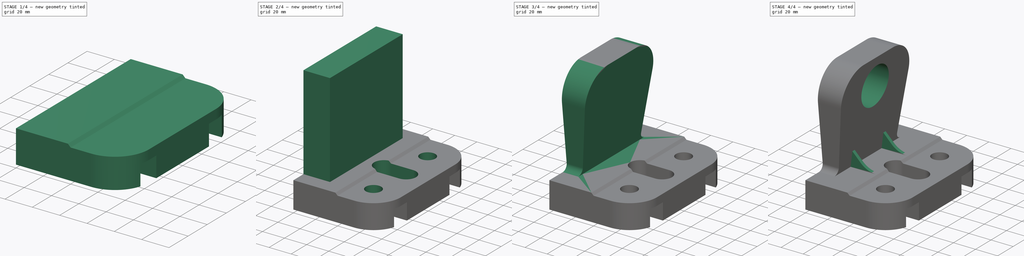
[diagram: build sequence overview — one tinted view per stage of 4, left to right]
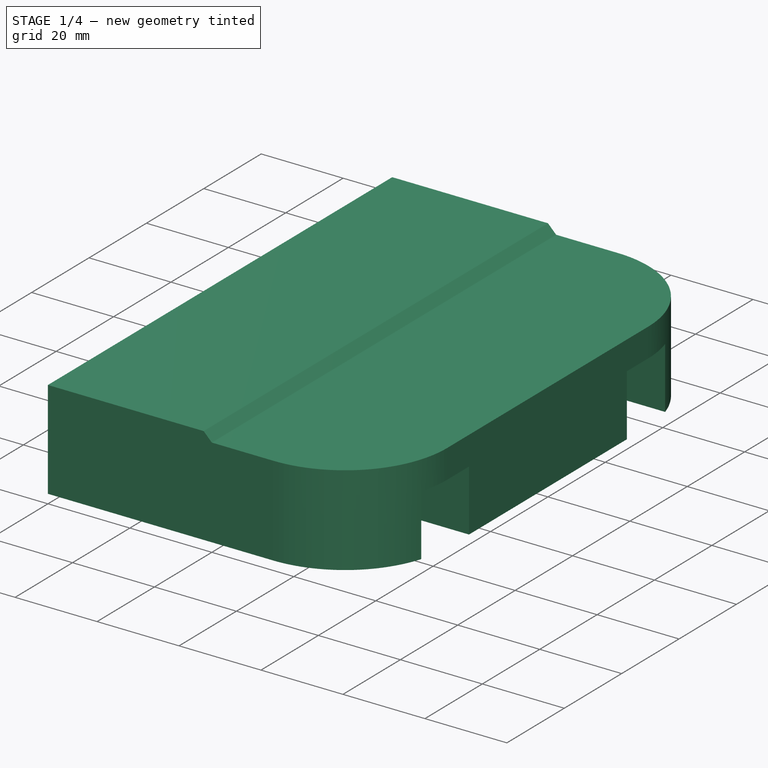
[diagram: stage 1 of 4 — iso view after this stage's code; geometry added in this stage tinted green]
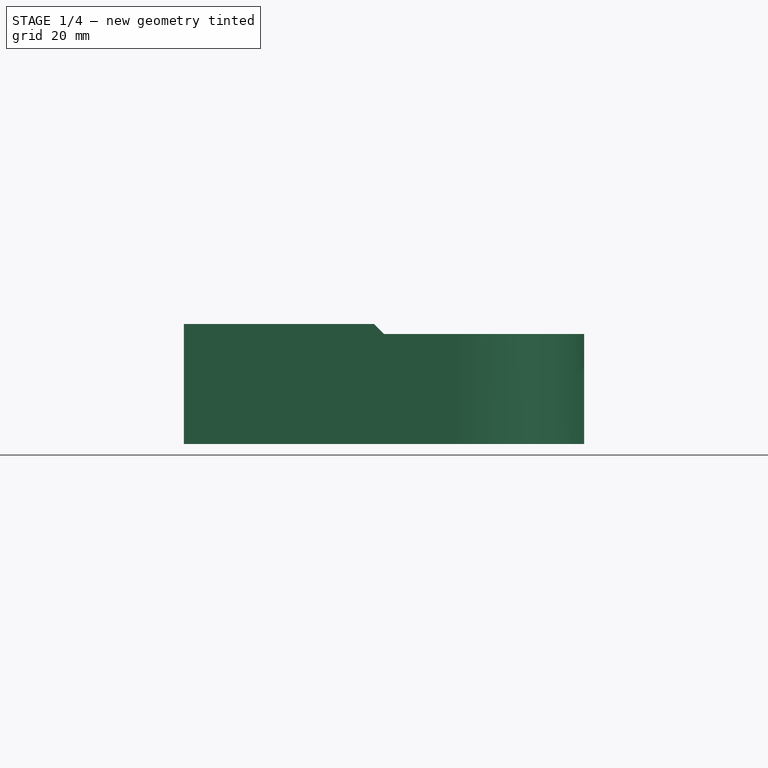
[diagram: stage 1 of 4 — front view after this stage's code; geometry added in this stage tinted green]
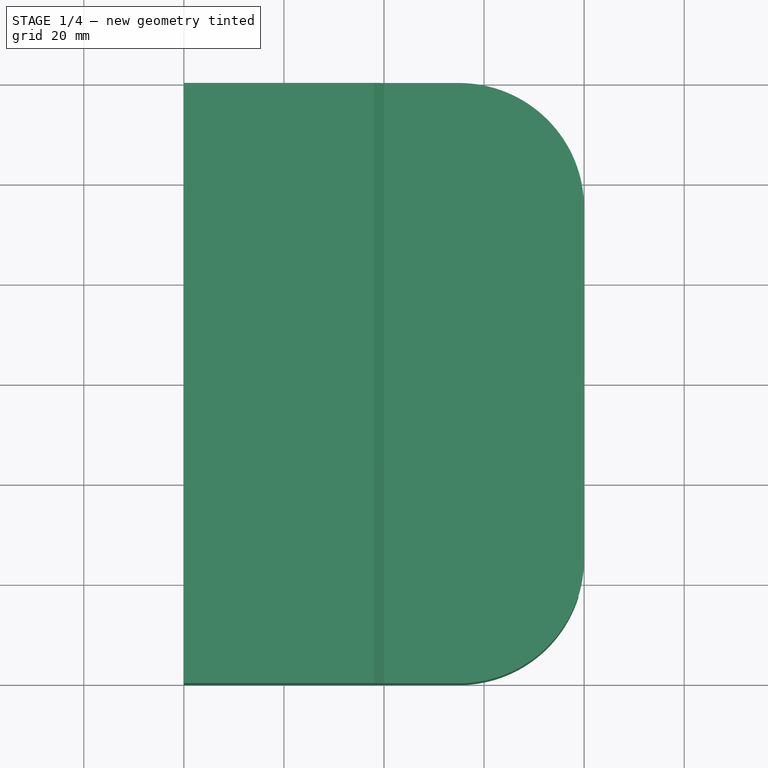
[diagram: stage 1 of 4 — top view after this stage's code; geometry added in this stage tinted green]
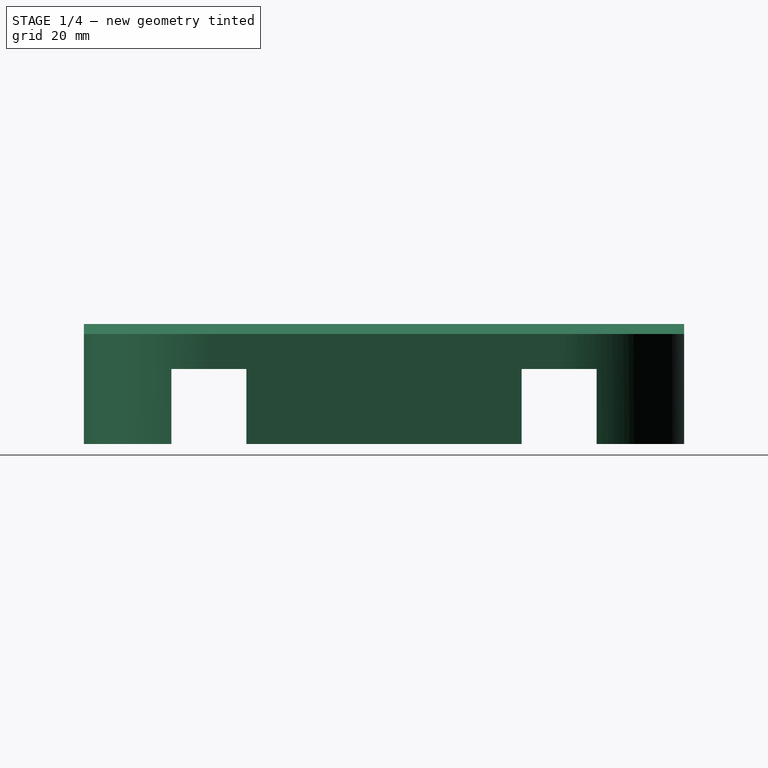
[diagram: stage 1 of 4 — right view after this stage's code; geometry added in this stage tinted green]
FCSTD DOCUMENT  (FreeCAD 0.17R10064 (Git))
Label: Challenge16_moderate
License: CreativeCommons Attribution-NonCommercial
LicenseURL: http://creativecommons.org/licenses/by-nc/4.0/
objects: Sketcher::SketchObject×7, PartDesign::Pocket×4, PartDesign::Pad×3, PartDesign::Fillet×3, PartDesign::Draft×1, PartDesign::Plane×1, PartDesign::Mirrored×1, PartDesign::Body×1, Raytracing::LuxProject×1
note: 28 computed .brp shape members not serialized (recipe doc carries the construction recipe); baked Part::Feature solids carry a one-line shape summary decoded from their .brp

FEATURE [Sketcher::SketchObject] Sketch
  MapMode = 5
  Placement = pos=(0,0,0) rot=(1,0,0;1.5708rad)
  Support = -> [XZ_Plane]
  sketch-geometry (6):
    g0: LineSegment StartX=-40 StartY=24 StartZ=0 EndX=-2 EndY=24 EndZ=0
    g1: LineSegment StartX=40 StartY=22 StartZ=0 EndX=40 EndY=0 EndZ=0
    g2: LineSegment StartX=40 StartY=0 StartZ=0 EndX=-40 EndY=0 EndZ=0
    g3: LineSegment StartX=-40 StartY=0 StartZ=0 EndX=-40 EndY=24 EndZ=0
    g4: LineSegment StartX=-2 StartY=24 StartZ=0 EndX=0 EndY=22 EndZ=0
    g5: LineSegment StartX=0 StartY=22 StartZ=0 EndX=40 EndY=22 EndZ=0
  constraints (19):
    c: Coincident(g1,g2)
    c: Coincident(g2,g3)
    c: Coincident(g3,g0)
    c: Horizontal(g0)
    c: Horizontal(g2)
    c: Vertical(g1)
    c: Vertical(g3)
    c: Distance(g2) = 80
    c: Distance(g3) = 24
    c: PointOnObject(g-1,g2)
    c: Symmetric(g2,g1,g-2)
    c: Coincident(g4,g5)
    c: Horizontal(g5)
    c: Coincident(g0,g4)
    c: PointOnObject(g1,g5)
    c: Distance(g0) = 38
    c: Distance(g5) = 40
    c: Coincident(g1,g5)
    c: Distance(g1) = 22
FEATURE [PartDesign::Pad] Pad
  Length = 120
  Length2 = 100
  Midplane = true
  Placement = pos=(0,0,0) rot=(1,0,0;1.5708rad)
  Profile = -> Sketch
  Type = 0
FEATURE [PartDesign::Fillet] Fillet
  Base = -> Pad [Edge12,Edge13]
  BaseFeature = -> Pad
  Placement = pos=(0,0,0) rot=(1,0,0;1.5708rad)
  Radius = 25
FEATURE [Sketcher::SketchObject] Sketch001
  MapMode = 5
  Placement = pos=(40,0,0) rot=(0.707107,0,0.707107;3.14159rad)
  Support = -> [Fillet]
  sketch-geometry (8):
    g0: LineSegment StartX=0 StartY=42.5 StartZ=0 EndX=15 EndY=42.5 EndZ=0
    g1: LineSegment StartX=15 StartY=42.5 StartZ=0 EndX=15 EndY=27.5 EndZ=0
    g2: LineSegment StartX=15 StartY=27.5 StartZ=0 EndX=0 EndY=27.5 EndZ=0
    g3: LineSegment StartX=0 StartY=27.5 StartZ=0 EndX=0 EndY=42.5 EndZ=0
    g4: LineSegment StartX=0 StartY=-27.5 StartZ=0 EndX=15 EndY=-27.5 EndZ=0
    g5: LineSegment StartX=15 StartY=-27.5 StartZ=0 EndX=15 EndY=-42.5 EndZ=0
    g6: LineSegment StartX=15 StartY=-42.5 StartZ=0 EndX=0 EndY=-42.5 EndZ=0
    g7: LineSegment StartX=0 StartY=-42.5 StartZ=0 EndX=0 EndY=-27.5 EndZ=0
  constraints (23):
    c: Coincident(g0,g1)
    c: Coincident(g1,g2)
    c: Coincident(g2,g3)
    c: Coincident(g3,g0)
    c: Horizontal(g0)
    c: Horizontal(g2)
    c: Vertical(g1)
    c: Vertical(g3)
    c: Distance(g-1,g0) = 42.5
    c: Distance(g-1,g2) = 27.5
    c: Distance(g0) = 15
    c: PointOnObject(g2,g-2)
    c: Coincident(g4,g5)
    c: Coincident(g5,g6)
    c: Coincident(g6,g7)
    c: Coincident(g7,g4)
    c: Horizontal(g4)
    c: Horizontal(g6)
    c: Vertical(g5)
    c: Vertical(g7)
    c: Equal(g4,g2)
    c: Equal(g5,g1)
    c: Symmetric(g4,g2,g-1)
FEATURE [PartDesign::Pocket] Pocket
  BaseFeature = -> Fillet
  Length = 0
  Placement = pos=(0,0,0) rot=(1,0,0;1.5708rad)
  Profile = -> Sketch001
  Type = 3
  UpToFace = -> Fillet [Face10]
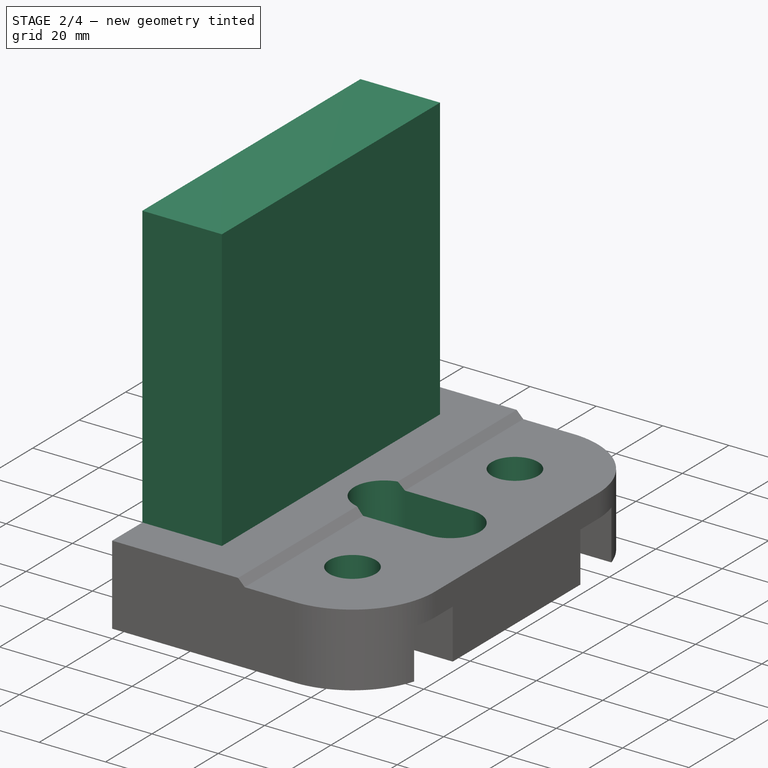
[diagram: stage 2 of 4 — iso view after this stage's code; geometry added in this stage tinted green]
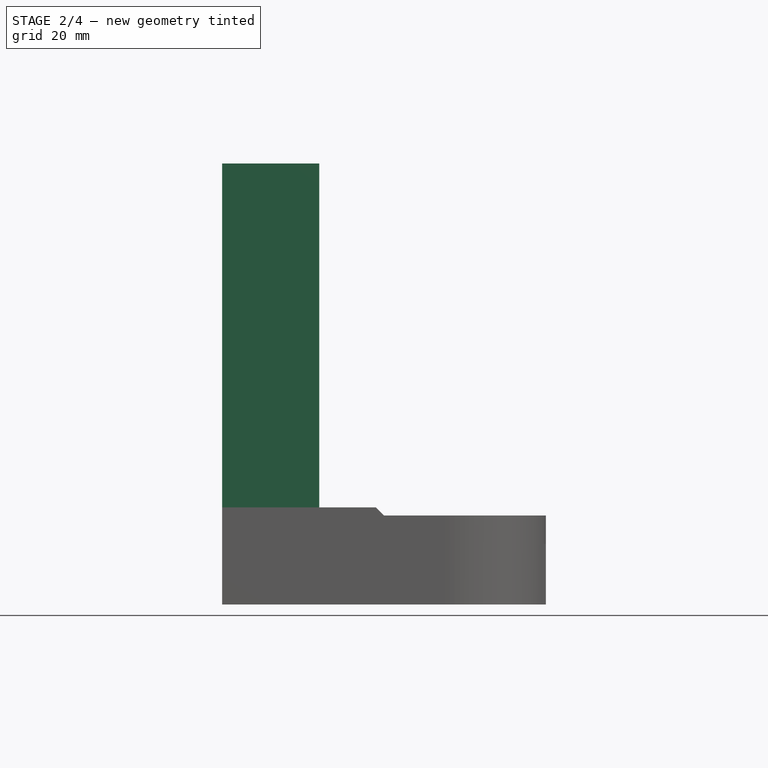
[diagram: stage 2 of 4 — front view after this stage's code; geometry added in this stage tinted green]
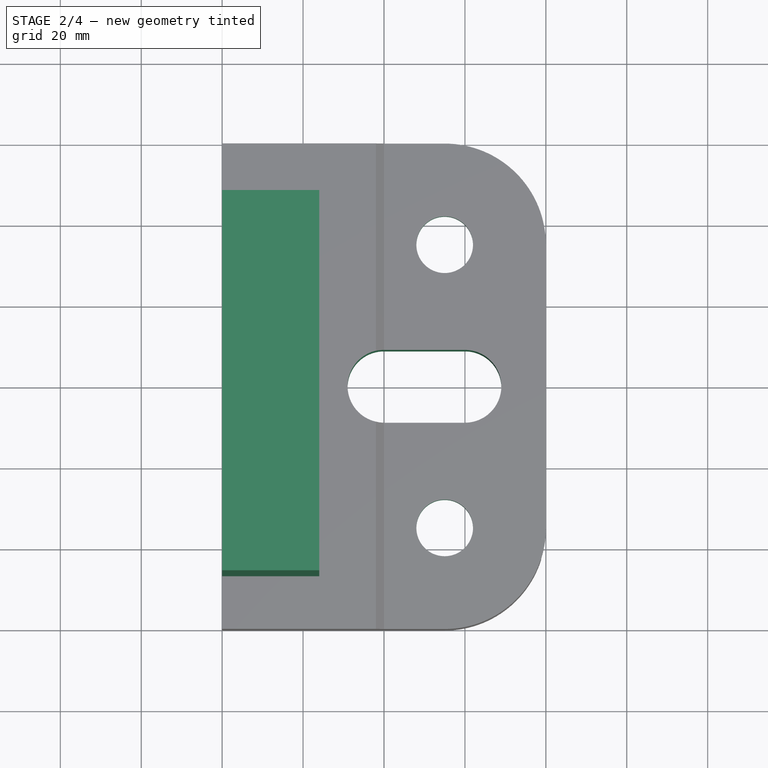
[diagram: stage 2 of 4 — top view after this stage's code; geometry added in this stage tinted green]
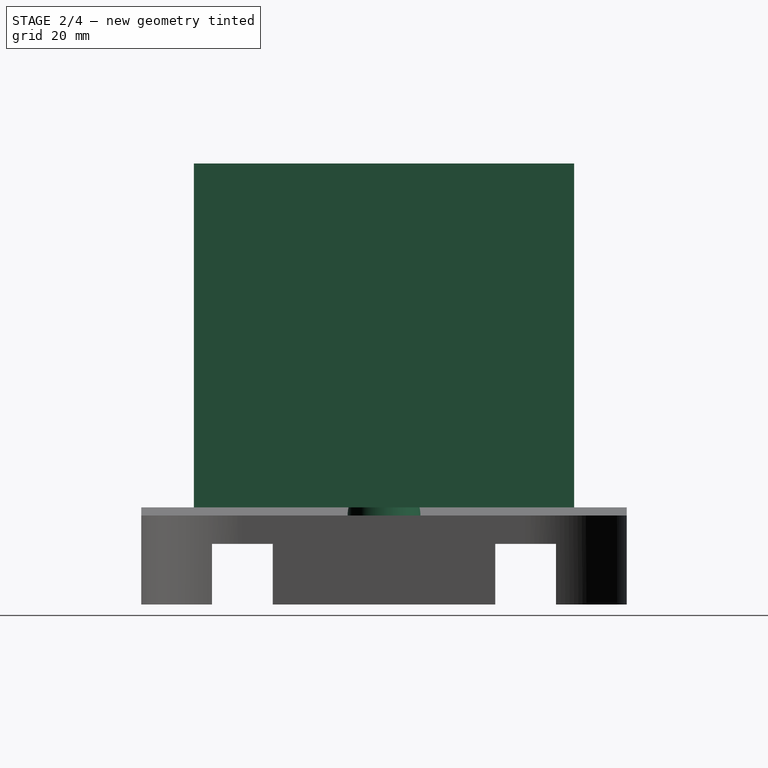
[diagram: stage 2 of 4 — right view after this stage's code; geometry added in this stage tinted green]
FEATURE [Sketcher::SketchObject] Sketch002
  ExternalGeometry = -> [Pocket]
  MapMode = 5
  Placement = pos=(0,0,24) rot=(0,0,1;3.14159rad)
  Support = -> [Pocket]
  sketch-geometry (4):
    g0: ArcOfCircle CenterX=-20 CenterY=0 CenterZ=0 NormalX=0 NormalY=0 NormalZ=1 Radius=9 StartAngle=1.5708 EndAngle=4.71239
    g1: ArcOfCircle CenterX=1.4e-11 CenterY=0 CenterZ=0 NormalX=0 NormalY=0 NormalZ=1 Radius=9 StartAngle=4.71239 EndAngle=7.85398
    g2: LineSegment StartX=-20 StartY=-9 StartZ=0 EndX=1.4e-11 EndY=-9 EndZ=0
    g3: LineSegment StartX=-20 StartY=9 StartZ=0 EndX=2.2e-11 EndY=9 EndZ=0
  constraints (10):
    c: Tangent(g0,g3) = 1.5708
    c: Tangent(g0,g2) = -1.5708
    c: Tangent(g2,g1) = -1.5708
    c: Tangent(g3,g1) = 1.5708
    c: Horizontal(g2)
    c: Equal(g0,g1)
    c: PointOnObject(g0,g-1)
    c: Radius(g0) = 9
    c: Distance(g3) = 20
    c: Distance(g0,g-3) = 20
FEATURE [PartDesign::Pocket] Pocket001
  BaseFeature = -> Pocket
  Length = 0
  Placement = pos=(0,0,0) rot=(1,0,0;1.5708rad)
  Profile = -> Sketch002
  Type = 3
  UpToFace = -> Pocket [Face10]
FEATURE [Sketcher::SketchObject] Sketch003
  ExternalGeometry = -> [Pocket001]
  MapMode = 5
  Placement = pos=(0,0,22) rot=(0,0,1;3.14159rad)
  Support = -> [Pocket001]
  sketch-geometry (2):
    g0: Circle CenterX=-15 CenterY=35 CenterZ=0 NormalX=0 NormalY=0 NormalZ=1 Radius=7
    g1: Circle CenterX=-15 CenterY=-35 CenterZ=0 NormalX=0 NormalY=0 NormalZ=1 Radius=7
  constraints (4):
    c: Equal(g1,g0)
    c: Symmetric(g0,g1,g-1)
    c: Coincident(g0,g-3)
    c: Radius(g0) = 7
FEATURE [PartDesign::Pocket] Pocket002
  BaseFeature = -> Pocket001
  Length = 0
  Placement = pos=(0,0,0) rot=(1,0,0;1.5708rad)
  Profile = -> Sketch003
  Type = 1
FEATURE [Sketcher::SketchObject] Sketch004
  ExternalGeometry = -> [Pocket002]
  MapMode = 5
  Placement = pos=(0,0,0) rot=(1,0,0;1.5708rad)
  Support = -> [XZ_Plane]
  sketch-geometry (4):
    g0: LineSegment StartX=-40 StartY=24 StartZ=0 EndX=-40 EndY=109 EndZ=0
    g1: LineSegment StartX=-40 StartY=109 StartZ=0 EndX=-16 EndY=109 EndZ=0
    g2: LineSegment StartX=-16 StartY=109 StartZ=0 EndX=-16 EndY=24 EndZ=0
    g3: LineSegment StartX=-16 StartY=24 StartZ=0 EndX=-40 EndY=24 EndZ=0
  constraints (11):
    c: Vertical(g0)
    c: Coincident(g0,g1)
    c: Horizontal(g1)
    c: Coincident(g1,g2)
    c: Coincident(g2,g3)
    c: Coincident(g3,g0)
    c: Horizontal(g3)
    c: Coincident(g0,g-3)
    c: Distance(g1) = 24
    c: DistanceY(g-1,g1) = 109
    c: Vertical(g2)
FEATURE [PartDesign::Pad] Pad001
  BaseFeature = -> Pocket002
  Length = 94
  Length2 = 100
  Midplane = true
  Placement = pos=(0,0,0) rot=(1,0,0;1.5708rad)
  Profile = -> Sketch004
  Type = 0
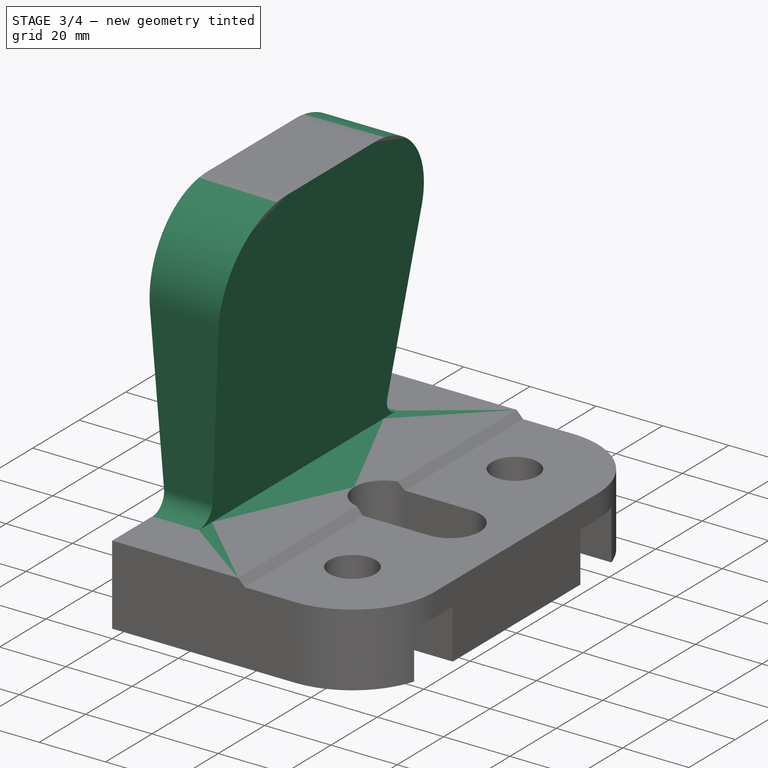
[diagram: stage 3 of 4 — iso view after this stage's code; geometry added in this stage tinted green]
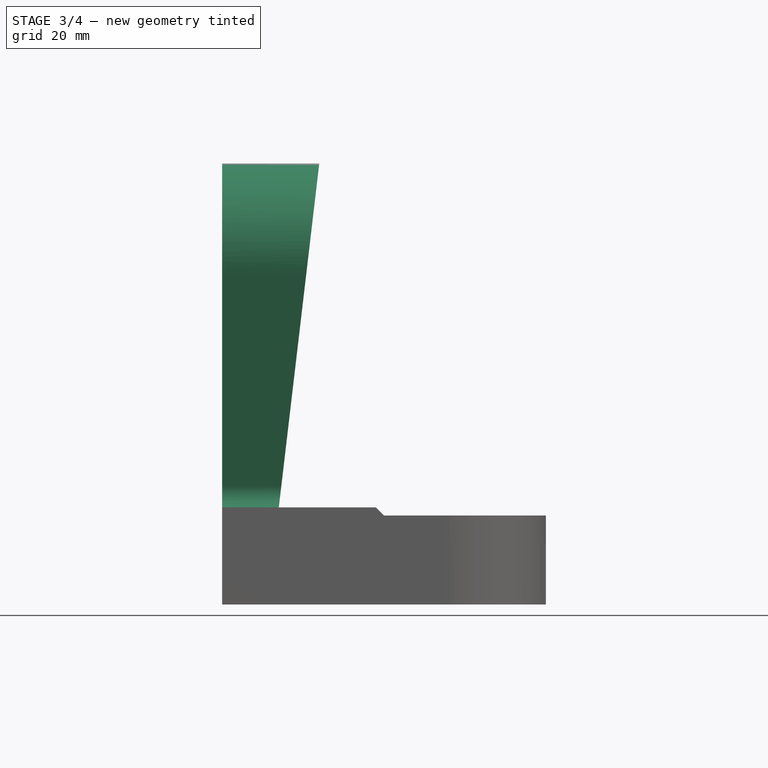
[diagram: stage 3 of 4 — front view after this stage's code; geometry added in this stage tinted green]
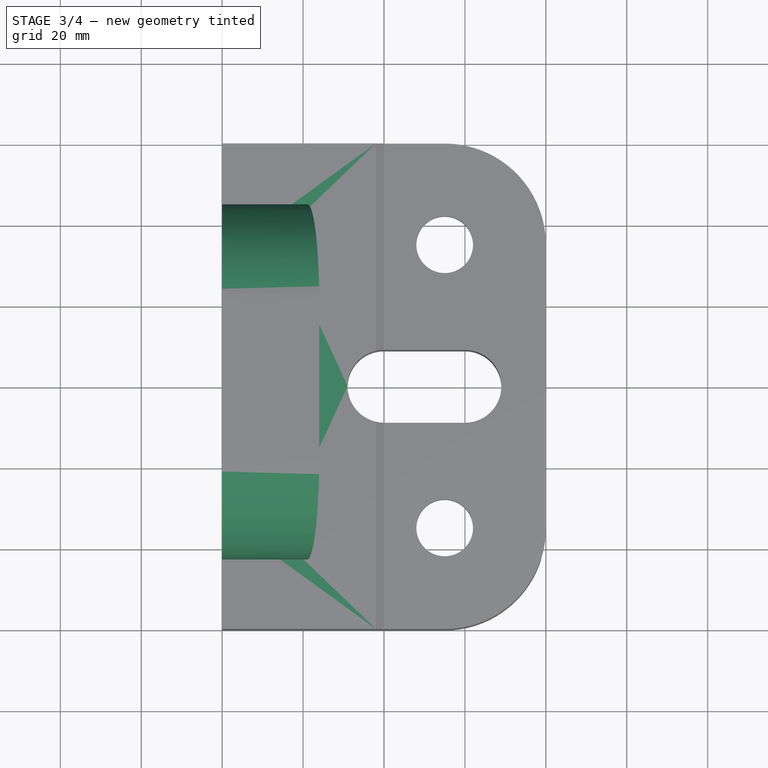
[diagram: stage 3 of 4 — top view after this stage's code; geometry added in this stage tinted green]
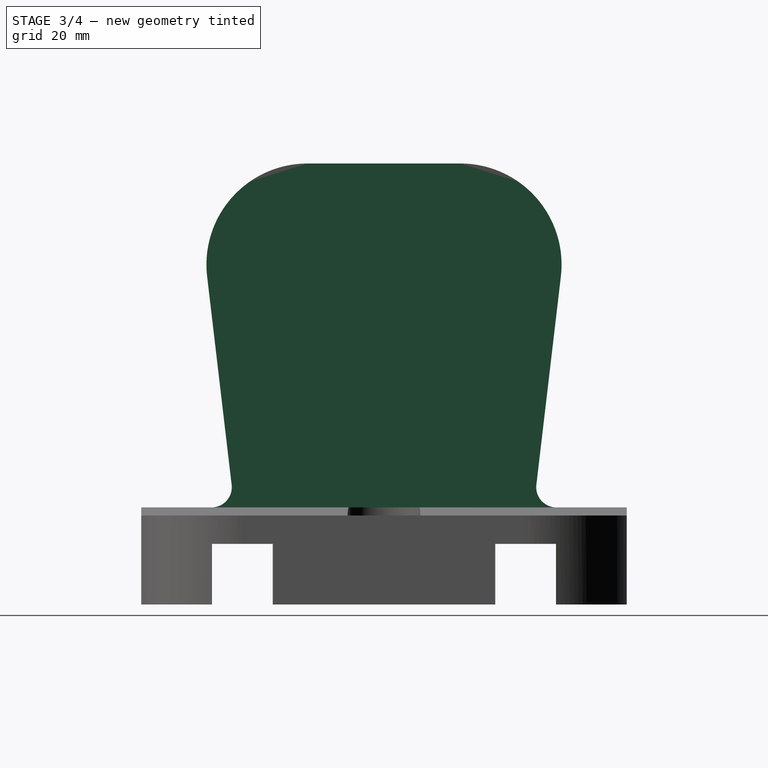
[diagram: stage 3 of 4 — right view after this stage's code; geometry added in this stage tinted green]
FEATURE [PartDesign::Draft] Draft
  Angle = 6.71
  Base = -> Pad001 [Face26,Face28,Face27]
  BaseFeature = -> Pad001
  NeutralPlane = -> Pad001 [Face30]
  Placement = pos=(0,0,0) rot=(1,0,0;1.5708rad)
  PullDirection = -> Pad001 [Edge76]
  Reversed = true
FEATURE [PartDesign::Fillet] Fillet001
  Base = -> Draft [Edge71,Edge73]
  BaseFeature = -> Draft
  Placement = pos=(0,0,0) rot=(1,0,0;1.5708rad)
  Radius = 5
FEATURE [PartDesign::Fillet] Fillet002
  Base = -> Fillet001 [Edge78,Edge88]
  BaseFeature = -> Fillet001
  Placement = pos=(0,0,0) rot=(1,0,0;1.5708rad)
  Radius = 25
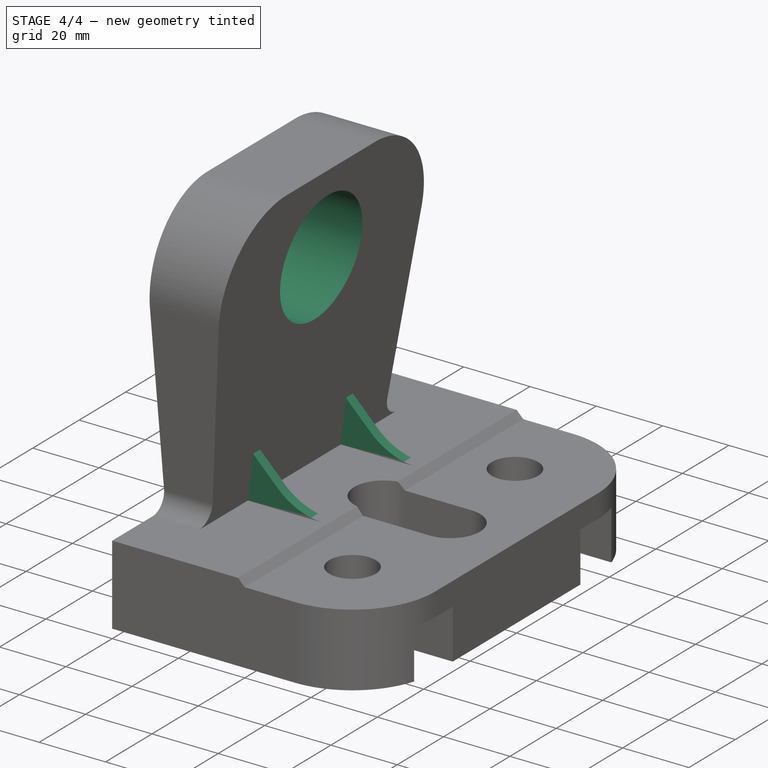
[diagram: stage 4 of 4 — iso view after this stage's code; geometry added in this stage tinted green]
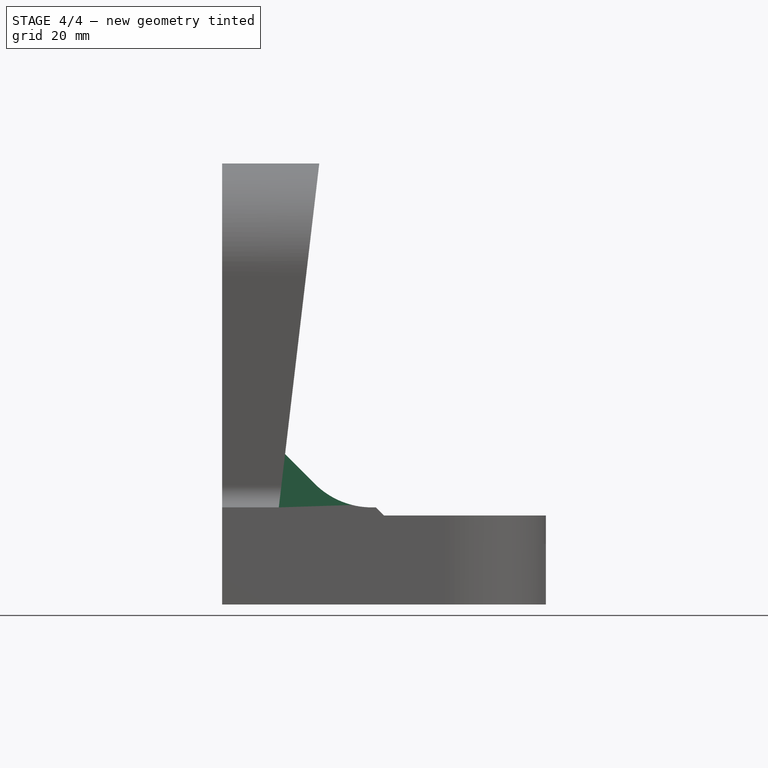
[diagram: stage 4 of 4 — front view after this stage's code; geometry added in this stage tinted green]
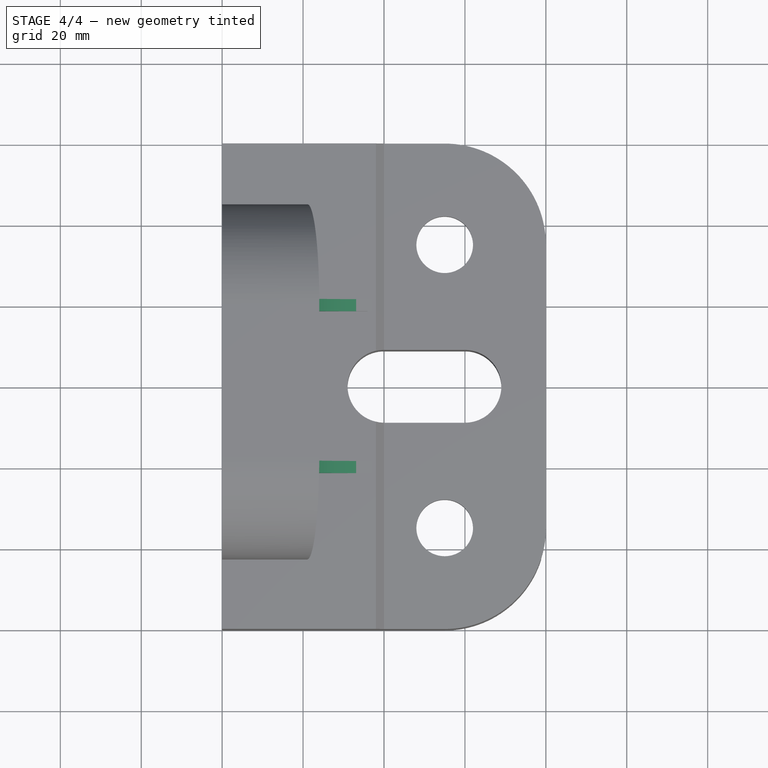
[diagram: stage 4 of 4 — top view after this stage's code; geometry added in this stage tinted green]
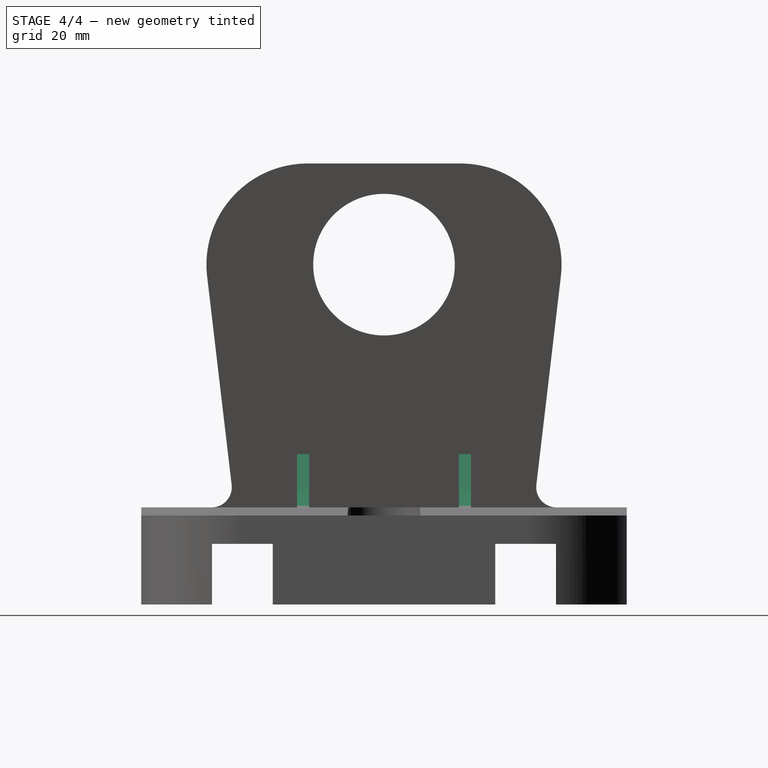
[diagram: stage 4 of 4 — right view after this stage's code; geometry added in this stage tinted green]
FEATURE [Sketcher::SketchObject] Sketch005
  MapMode = 5
  Placement = pos=(-40,0,0) rot=(0.707107,0,-0.707107;3.14159rad)
  Support = -> [Fillet002]
  sketch-geometry (1):
    g0: Circle CenterX=-84 CenterY=0 CenterZ=0 NormalX=0 NormalY=0 NormalZ=1 Radius=17.5
  constraints (3):
    c: PointOnObject(g0,g-1)
    c: Radius(g0) = 17.5
    c: Distance(g-1,g0) = 84
FEATURE [PartDesign::Pocket] Pocket003
  BaseFeature = -> Fillet002
  Length = 5
  Placement = pos=(0,0,0) rot=(1,0,0;1.5708rad)
  Profile = -> Sketch005
  Type = 1
FEATURE [PartDesign::Plane] DatumPlane
  MapMode = 5
  Placement = pos=(0,-21.5,0) rot=(1,0,0;1.5708rad)
  Support = -> [Pocket003]
  superPlacement = pos=(0,0,-38.5) rot=(0,0,1;0rad)
FEATURE [Sketcher::SketchObject] Sketch006
  ExternalGeometry = -> [Pocket003]
  MapMode = 5
  Placement = pos=(0,-21.5,0) rot=(1,0,0;1.5708rad)
  Support = -> [DatumPlane]
  sketch-geometry (4):
    g0: LineSegment StartX=-3 StartY=24 StartZ=0 EndX=-26.0002 EndY=24 EndZ=0
    g1: LineSegment StartX=-26.0002 StartY=24 StartZ=0 EndX=-24.4512 EndY=37.1669 EndZ=0
    g2: LineSegment StartX=-24.4512 StartY=37.1669 StartZ=0 EndX=-17.1422 EndY=29.8579 EndZ=0
    g3: ArcOfCircle CenterX=-3.00004 CenterY=44 CenterZ=0 NormalX=0 NormalY=0 NormalZ=1 Radius=20 StartAngle=3.92699 EndAngle=4.71239
  constraints (12):
    c: Horizontal(g0)
    c: Coincident(g0,g1)
    c: Coincident(g1,g2)
    c: Tangent(g2,g3) = -1.5708
    c: Coincident(g0,g3)
    c: Radius(g3) = 20
    c: PointOnObject(g0,g-4)
    c: PointOnObject(g1,g-3)
    c: Parallel(g1,g-3)
    c: Angle(g2,g-4) = 0.785398
    c: Tangent(g3,g-4)
    c: Distance(g0,g-4) = 1
FEATURE [PartDesign::Pad] Pad002
  BaseFeature = -> Pocket003
  Length = 3
  Length2 = 100
  Placement = pos=(0,0,0) rot=(1,0,0;1.5708rad)
  Profile = -> Sketch006
  Reversed = true
  Type = 0
FEATURE [PartDesign::Mirrored] Mirrored
  BaseFeature = -> Pad002
  MirrorPlane = -> XZ_Plane
  Originals = -> [Pad002]
  Placement = pos=(0,0,0) rot=(1,0,0;1.5708rad)
FEATURE [PartDesign::Body] Body
  Group = -> [Sketch,Pad,Fillet,Sketch001,Pocket,Sketch002,Pocket001,Sketch003,Pocket002,Sketch004,Pad001,Draft,Fillet001,Fillet002,Sketch005,Pocket003,DatumPlane,Sketch006,Pad002,Mirrored]
  Origin = -> BodyOrigin
  Tip = -> Mirrored
FEATURE [Raytracing::LuxProject] LuxProject
  Camera = # declares positon and view direction\n# Generated by FreeCAD (http://www.freecadweb.org/)\nLookAt 276.95 -261.809 308.319 -0.905731 18.2916 28.0073 -0.477658 0.337792 0.811012
  Template = /Applications/FreeCAD.app/Contents/data/Mod/Raytracing/Templates/LuxClassic.lxs
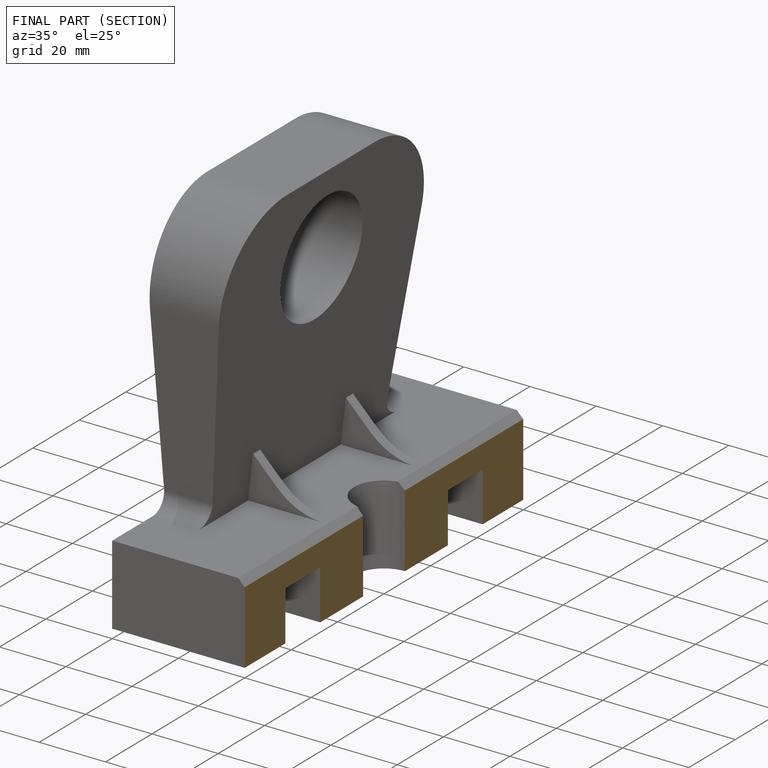
[diagram: finished part — half-section view (interior)]
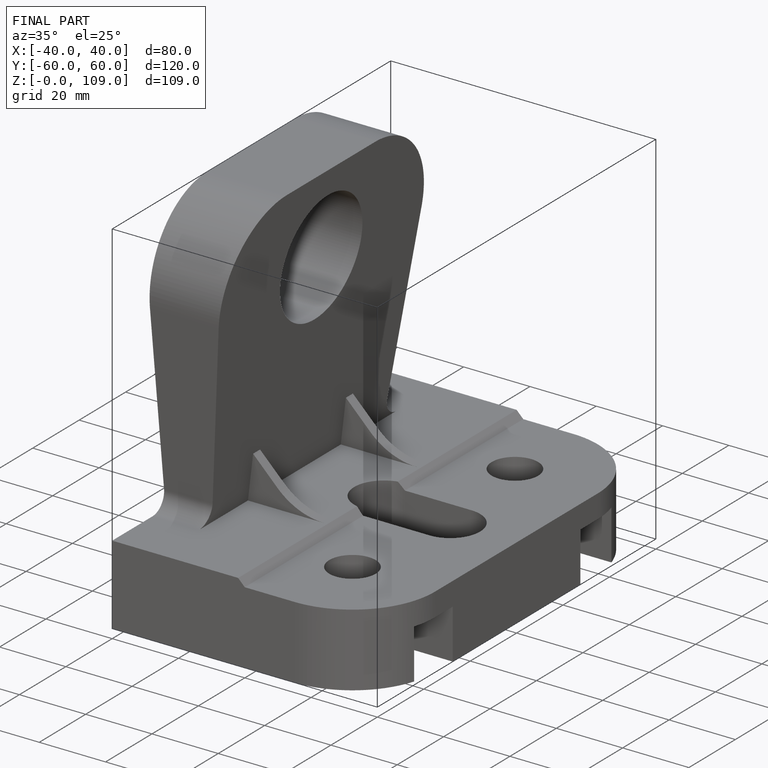
[diagram: finished part — iso view with bounding-box wireframe]
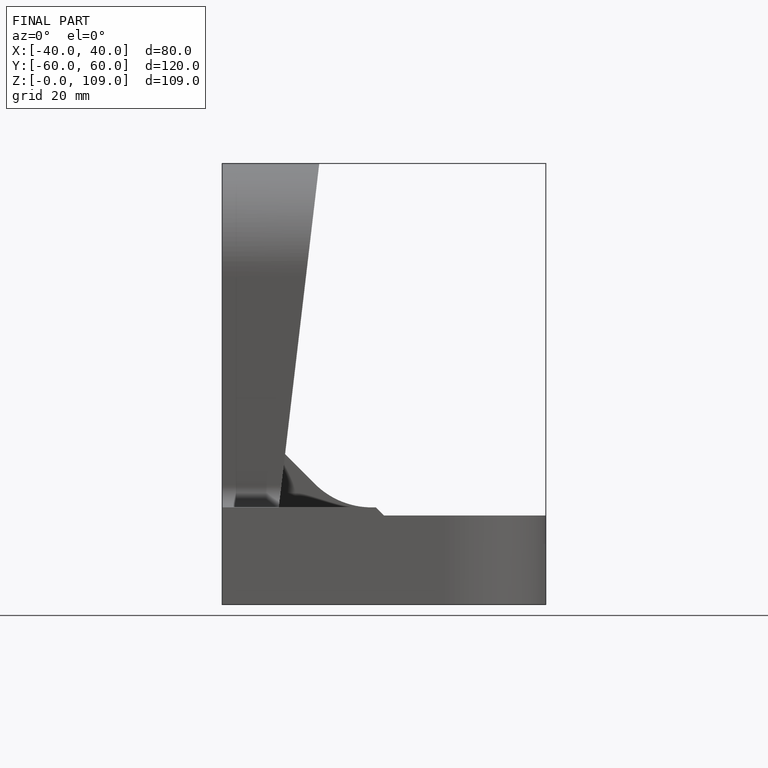
[diagram: finished part — front view with bounding-box wireframe]
